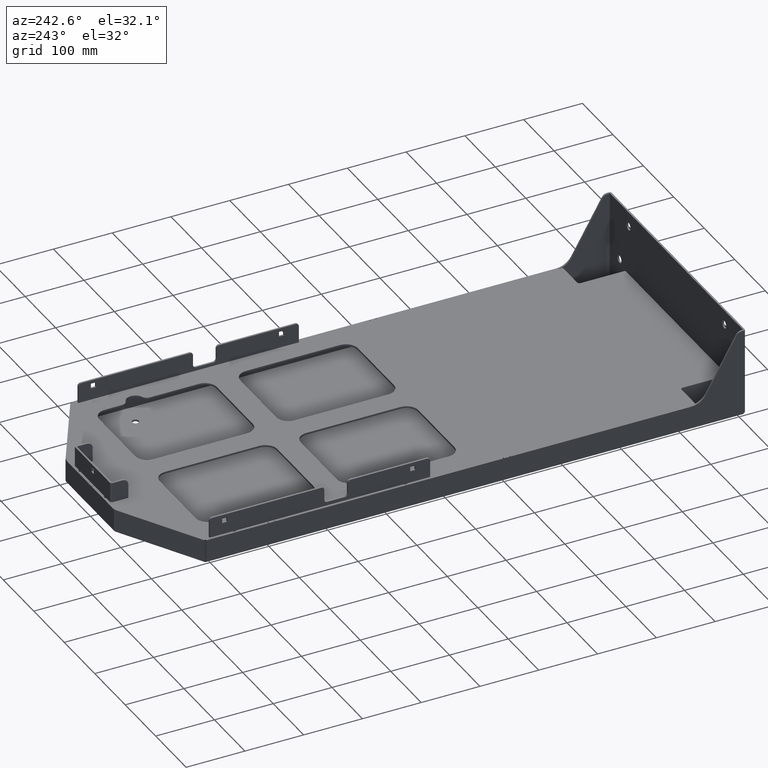
[diagram: clean part render]
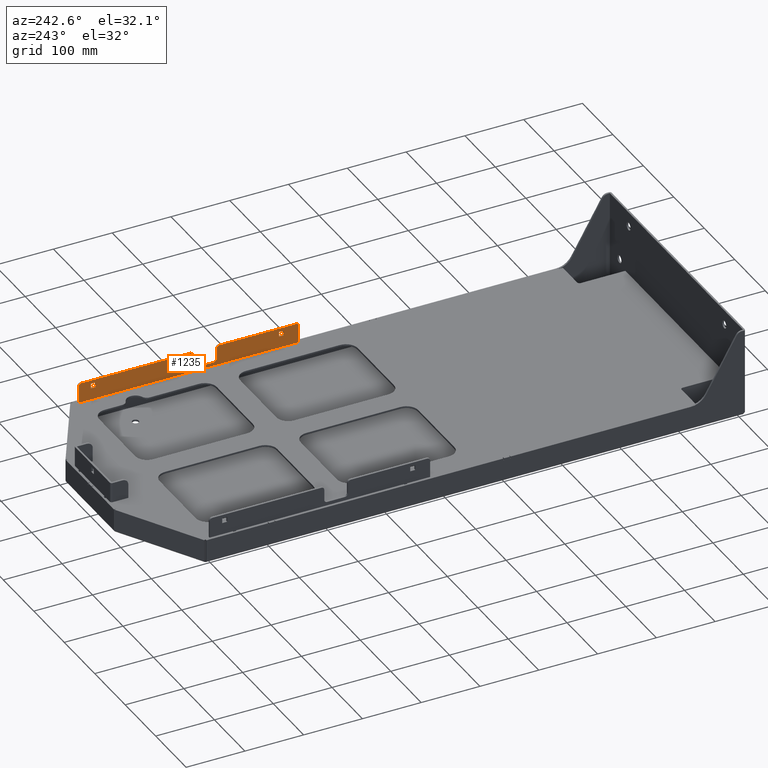
[diagram: same view with one face highlighted and labeled with its STEP entity id]
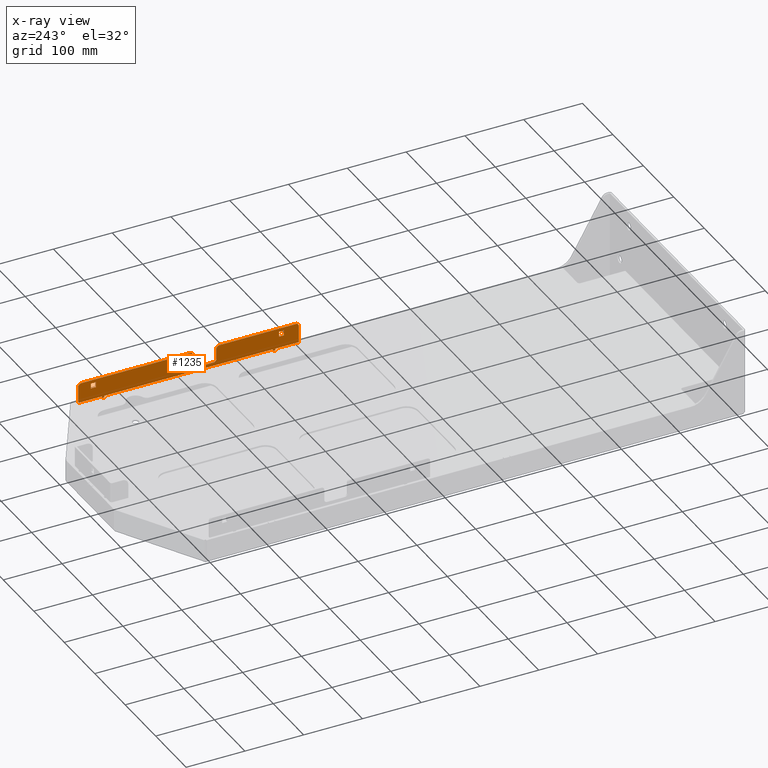
[diagram: x-ray of the same camera — body ghosted, the highlighted face saturated]
A machine part, auxiliary view. The second image highlights one B-rep face of the part: STEP entity #1235.
The next image is the same camera in x-ray: the body ghosted, the highlighted face saturated — about 0% of this face is hidden behind the body in this view.
In plain terms, the highlighted planar face has unit normal (-1, -0, -0).
Its self-contained STEP definition (entity closure, byte-faithful):
#287 = VERTEX_POINT ( 'NONE', #7946 ) ;
#305 = EDGE_CURVE ( 'NONE', #287, #360, #7885, .T. ) ;
#306 = VERTEX_POINT ( 'NONE', #7889 ) ;
#307 = VERTEX_POINT ( 'NONE', #7985 ) ;
#360 = VERTEX_POINT ( 'NONE', #8163 ) ;
#372 = EDGE_CURVE ( 'NONE', #373, #379, #8357, .T. ) ;
#373 = VERTEX_POINT ( 'NONE', #8281 ) ;
#378 = EDGE_CURVE ( 'NONE', #306, #307, #8235, .T. ) ;
#379 = VERTEX_POINT ( 'NONE', #8226 ) ;
#1051 = VERTEX_POINT ( 'NONE', #13053 ) ;
#1052 = ORIENTED_EDGE ( 'NONE', *, *, #1269, .T. ) ;
#1053 = EDGE_CURVE ( 'NONE', #1234, #1286, #13058, .T. ) ;
#1054 = VERTEX_POINT ( 'NONE', #13084 ) ;
#1055 = ORIENTED_EDGE ( 'NONE', *, *, #1053, .T. ) ;
#1056 = EDGE_CURVE ( 'NONE', #1286, #1051, #13083, .T. ) ;
#1057 = VERTEX_POINT ( 'NONE', #13082 ) ;
#1058 = EDGE_CURVE ( 'NONE', #1221, #1054, #13072, .T. ) ;
#1059 = EDGE_CURVE ( 'NONE', #1051, #1107, #13018, .T. ) ;
#1060 = VERTEX_POINT ( 'NONE', #13016 ) ;
#1062 = ORIENTED_EDGE ( 'NONE', *, *, #1059, .T. ) ;
#1063 = ORIENTED_EDGE ( 'NONE', *, *, #378, .F. ) ;
#1064 = ORIENTED_EDGE ( 'NONE', *, *, #1295, .T. ) ;
#1065 = VERTEX_POINT ( 'NONE', #13085 ) ;
#1066 = ORIENTED_EDGE ( 'NONE', *, *, #1124, .F. ) ;
#1067 = ORIENTED_EDGE ( 'NONE', *, *, #1058, .T. ) ;
#1105 = EDGE_CURVE ( 'NONE', #1108, #1060, #13170, .T. ) ;
#1106 = EDGE_CURVE ( 'NONE', #1110, #1208, #13345, .T. ) ;
#1107 = VERTEX_POINT ( 'NONE', #13263 ) ;
#1108 = VERTEX_POINT ( 'NONE', #13238 ) ;
#1109 = ORIENTED_EDGE ( 'NONE', *, *, #1156, .T. ) ;
#1110 = VERTEX_POINT ( 'NONE', #13166 ) ;
#1119 = EDGE_CURVE ( 'NONE', #379, #1160, #13164, .T. ) ;
#1120 = EDGE_CURVE ( 'NONE', #1217, #1065, #13327, .T. ) ;
#1121 = EDGE_CURVE ( 'NONE', #1060, #1290, #13322, .T. ) ;
#1122 = ORIENTED_EDGE ( 'NONE', *, *, #1233, .F. ) ;
#1123 = ORIENTED_EDGE ( 'NONE', *, *, #1267, .F. ) ;
#1124 = EDGE_CURVE ( 'NONE', #1265, #1216, #13318, .T. ) ;
#1125 = ORIENTED_EDGE ( 'NONE', *, *, #1223, .F. ) ;
#1148 = ORIENTED_EDGE ( 'NONE', *, *, #1056, .T. ) ;
#1154 = ORIENTED_EDGE ( 'NONE', *, *, #1105, .T. ) ;
#1156 = EDGE_CURVE ( 'NONE', #1290, #1159, #13208, .T. ) ;
#1157 = VERTEX_POINT ( 'NONE', #13207 ) ;
#1158 = VERTEX_POINT ( 'NONE', #13214 ) ;
#1159 = VERTEX_POINT ( 'NONE', #13203 ) ;
#1160 = VERTEX_POINT ( 'NONE', #13213 ) ;
#1161 = EDGE_CURVE ( 'NONE', #1065, #1265, #13202, .T. ) ;
#1169 = EDGE_LOOP ( 'NONE', ( #1209, #1288, #1287, #1281 ) ) ;
#1170 = EDGE_CURVE ( 'NONE', #1208, #1158, #13251, .T. ) ;
#1175 = VERTEX_POINT ( 'NONE', #13253 ) ;
#1208 = VERTEX_POINT ( 'NONE', #13590 ) ;
#1209 = ORIENTED_EDGE ( 'NONE', *, *, #1106, .T. ) ;
#1210 = ORIENTED_EDGE ( 'NONE', *, *, #1285, .T. ) ;
#1215 = ORIENTED_EDGE ( 'NONE', *, *, #1293, .F. ) ;
#1216 = VERTEX_POINT ( 'NONE', #13583 ) ;
#1217 = VERTEX_POINT ( 'NONE', #13586 ) ;
#1219 = EDGE_CURVE ( 'NONE', #1158, #1157, #13398, .T. ) ;
#1220 = VERTEX_POINT ( 'NONE', #13404 ) ;
#1221 = VERTEX_POINT ( 'NONE', #13400 ) ;
#1222 = ORIENTED_EDGE ( 'NONE', *, *, #1120, .F. ) ;
#1223 = EDGE_CURVE ( 'NONE', #1160, #1217, #13394, .T. ) ;
#1226 = EDGE_CURVE ( 'NONE', #1157, #1110, #13384, .T. ) ;
#1229 = EDGE_CURVE ( 'NONE', #306, #1057, #13399, .T. ) ;
#1230 = ORIENTED_EDGE ( 'NONE', *, *, #1297, .T. ) ;
#1231 = EDGE_CURVE ( 'NONE', #1294, #287, #13542, .T. ) ;
#1233 = EDGE_CURVE ( 'NONE', #1305, #373, #13525, .T. ) ;
#1234 = VERTEX_POINT ( 'NONE', #13524 ) ;
#1235 = ADVANCED_FACE ( 'NONE', ( #13518, #13385, #13520 ), #13534, .T. ) ;
#1236 = ORIENTED_EDGE ( 'NONE', *, *, #1251, .F. ) ;
#1237 = EDGE_CURVE ( 'NONE', #1305, #1220, #13516, .T. ) ;
#1250 = ORIENTED_EDGE ( 'NONE', *, *, #1237, .T. ) ;
#1251 = EDGE_CURVE ( 'NONE', #1175, #1220, #13670, .T. ) ;
#1265 = VERTEX_POINT ( 'NONE', #13854 ) ;
#1266 = ORIENTED_EDGE ( 'NONE', *, *, #1231, .F. ) ;
#1267 = EDGE_CURVE ( 'NONE', #1216, #1294, #13833, .T. ) ;
#1268 = ORIENTED_EDGE ( 'NONE', *, *, #1161, .F. ) ;
#1269 = EDGE_CURVE ( 'NONE', #1175, #1234, #13850, .T. ) ;
#1281 = ORIENTED_EDGE ( 'NONE', *, *, #1226, .T. ) ;
#1285 = EDGE_CURVE ( 'NONE', #1159, #1108, #14170, .T. ) ;
#1286 = VERTEX_POINT ( 'NONE', #14079 ) ;
#1287 = ORIENTED_EDGE ( 'NONE', *, *, #1219, .T. ) ;
#1288 = ORIENTED_EDGE ( 'NONE', *, *, #1170, .T. ) ;
#1289 = EDGE_LOOP ( 'NONE', ( #1300, #1109, #1210, #1154 ) ) ;
#1290 = VERTEX_POINT ( 'NONE', #14036 ) ;
#1291 = ORIENTED_EDGE ( 'NONE', *, *, #305, .F. ) ;
#1292 = ORIENTED_EDGE ( 'NONE', *, *, #1229, .T. ) ;
#1293 = EDGE_CURVE ( 'NONE', #360, #1057, #14111, .T. ) ;
#1294 = VERTEX_POINT ( 'NONE', #14171 ) ;
#1295 = EDGE_CURVE ( 'NONE', #1107, #1221, #14114, .T. ) ;
#1296 = ORIENTED_EDGE ( 'NONE', *, *, #1119, .F. ) ;
#1297 = EDGE_CURVE ( 'NONE', #1054, #307, #14076, .T. ) ;
#1298 = EDGE_LOOP ( 'NONE', ( #1122, #1250, #1236, #1052, #1055, #1148, #1062, #1064, #1067, #1230, #1063, #1292, #1215, #1291, #1266, #1123, #1066, #1268, #1222, #1125, #1296, #1301 ) ) ;
#1300 = ORIENTED_EDGE ( 'NONE', *, *, #1121, .T. ) ;
#1301 = ORIENTED_EDGE ( 'NONE', *, *, #372, .F. ) ;
#1305 = VERTEX_POINT ( 'NONE', #13890 ) ;
#7885 = LINE ( 'NONE', #7993, #7927 ) ;
#7889 = CARTESIAN_POINT ( 'NONE',  ( 213.9999999999999100, 904.5000000000000000, 74.00000000000000000 ) ) ;
#7927 = VECTOR ( 'NONE', #7986, 1000.000000000000000 ) ;
#7946 = CARTESIAN_POINT ( 'NONE',  ( 213.9999999999999400, 869.5000000000000000, 40.00000000000003600 ) ) ;
#7985 = CARTESIAN_POINT ( 'NONE',  ( 213.9999999999999700, 719.5000000000002300, 74.00000000000007100 ) ) ;
#7986 = DIRECTION ( 'NONE',  ( -2.255140518769851100E-017, 1.000000000000000000, -3.538835890992689400E-016 ) ) ;
#7993 = CARTESIAN_POINT ( 'NONE',  ( 213.9999999999999100, 534.5000000000004500, 40.00000000000017800 ) ) ;
#8163 = CARTESIAN_POINT ( 'NONE',  ( 214.0000000000000600, 909.4999999999997700, 40.00000000000016300 ) ) ;
#8226 = CARTESIAN_POINT ( 'NONE',  ( 214.0000000000000300, 574.5000000000003400, 40.00000000000024200 ) ) ;
#8230 = DIRECTION ( 'NONE',  ( 2.255140518769851100E-017, -1.000000000000000000, 3.538835890992689400E-016 ) ) ;
#8232 = VECTOR ( 'NONE', #8230, 1000.000000000000000 ) ;
#8233 = CARTESIAN_POINT ( 'NONE',  ( 214.0000000000000000, 534.5000000000004500, 74.00000000000011400 ) ) ;
#8235 = LINE ( 'NONE', #8233, #8232 ) ;
#8281 = CARTESIAN_POINT ( 'NONE',  ( 213.9999999999999100, 534.5000000000004500, 40.00000000000017800 ) ) ;
#8354 = DIRECTION ( 'NONE',  ( -2.255140518769851100E-017, 1.000000000000000000, -3.538835890992689400E-016 ) ) ;
#8355 = VECTOR ( 'NONE', #8354, 1000.000000000000000 ) ;
#8356 = CARTESIAN_POINT ( 'NONE',  ( 213.9999999999999100, 534.5000000000004500, 40.00000000000017800 ) ) ;
#8357 = LINE ( 'NONE', #8356, #8355 ) ;
#13014 = DIRECTION ( 'NONE',  ( -8.673617379884044700E-018, 1.000000000000000000, -4.276093368282834400E-016 ) ) ;
#13015 = VECTOR ( 'NONE', #13014, 1000.000000000000000 ) ;
#13016 = CARTESIAN_POINT ( 'NONE',  ( 213.9999999999998900, 888.2500000000002300, 59.74999999999997200 ) ) ;
#13017 = CARTESIAN_POINT ( 'NONE',  ( 213.9999999999999100, 674.5000000000005700, 46.00000000000018500 ) ) ;
#13018 = LINE ( 'NONE', #13017, #13015 ) ;
#13019 = DIRECTION ( 'NONE',  ( 0.0000000000000000000, -3.764349942869679800E-016, 1.000000000000000000 ) ) ;
#13020 = VECTOR ( 'NONE', #13019, 1000.000000000000000 ) ;
#13053 = CARTESIAN_POINT ( 'NONE',  ( 213.9999999999999400, 679.5000000000002300, 46.00000000000016300 ) ) ;
#13055 = AXIS2_PLACEMENT_3D ( 'NONE', #13078, #13077, #13076 ) ;
#13058 = LINE ( 'NONE', #13081, #13080 ) ;
#13071 = CARTESIAN_POINT ( 'NONE',  ( 213.9999999999999400, 714.5000000000001100, 74.00000000000002800 ) ) ;
#13072 = LINE ( 'NONE', #13071, #13020 ) ;
#13076 = DIRECTION ( 'NONE',  ( 0.0000000000000000000, 0.0000000000000000000, 1.000000000000000000 ) ) ;
#13077 = DIRECTION ( 'NONE',  ( 1.000000000000000000, 1.214306433183765000E-017, -0.0000000000000000000 ) ) ;
#13078 = CARTESIAN_POINT ( 'NONE',  ( 213.9999999999999700, 679.5000000000002300, 51.00000000000013500 ) ) ;
#13079 = DIRECTION ( 'NONE',  ( 0.0000000000000000000, 3.764349942869679800E-016, -1.000000000000000000 ) ) ;
#13080 = VECTOR ( 'NONE', #13079, 1000.000000000000000 ) ;
#13081 = CARTESIAN_POINT ( 'NONE',  ( 214.0000000000000900, 674.5000000000003400, 74.00000000000008500 ) ) ;
#13082 = CARTESIAN_POINT ( 'NONE',  ( 214.0000000000000300, 909.5000000000000000, 68.99999999999992900 ) ) ;
#13083 = CIRCLE ( 'NONE', #13055, 4.999999999999990200 ) ;
#13084 = CARTESIAN_POINT ( 'NONE',  ( 213.9999999999999700, 714.5000000000001100, 69.00000000000005700 ) ) ;
#13085 = CARTESIAN_POINT ( 'NONE',  ( 214.0000000000000000, 578.5000000000004500, 40.00000000000021300 ) ) ;
#13164 = LINE ( 'NONE', #13338, #13337 ) ;
#13166 = CARTESIAN_POINT ( 'NONE',  ( 213.9999999999999700, 568.2500000000003400, 59.75000000000013500 ) ) ;
#13167 = DIRECTION ( 'NONE',  ( -8.673617379884044700E-018, 1.000000000000000000, -4.276093368282834400E-016 ) ) ;
#13168 = VECTOR ( 'NONE', #13167, 1000.000000000000000 ) ;
#13169 = CARTESIAN_POINT ( 'NONE',  ( 213.9999999999999400, 879.7500000000001100, 59.74999999999990100 ) ) ;
#13170 = LINE ( 'NONE', #13169, #13168 ) ;
#13199 = DIRECTION ( 'NONE',  ( -2.255140518769851100E-017, 1.000000000000000000, -3.538835890992689400E-016 ) ) ;
#13200 = VECTOR ( 'NONE', #13199, 1000.000000000000000 ) ;
#13201 = CARTESIAN_POINT ( 'NONE',  ( 213.9999999999999100, 534.5000000000004500, 40.00000000000017800 ) ) ;
#13202 = LINE ( 'NONE', #13201, #13200 ) ;
#13203 = CARTESIAN_POINT ( 'NONE',  ( 213.9999999999998300, 879.7500000000000000, 68.24999999999992900 ) ) ;
#13204 = DIRECTION ( 'NONE',  ( 8.673617379884044700E-018, -1.000000000000000000, 4.276093368282834400E-016 ) ) ;
#13205 = VECTOR ( 'NONE', #13204, 1000.000000000000000 ) ;
#13206 = CARTESIAN_POINT ( 'NONE',  ( 213.9999999999998300, 879.7500000000000000, 68.24999999999992900 ) ) ;
#13207 = CARTESIAN_POINT ( 'NONE',  ( 213.9999999999999400, 559.7500000000002300, 59.75000000000014900 ) ) ;
#13208 = LINE ( 'NONE', #13206, #13205 ) ;
#13213 = CARTESIAN_POINT ( 'NONE',  ( 213.9999999999998600, 574.5000000000004500, 37.00000000000018500 ) ) ;
#13214 = CARTESIAN_POINT ( 'NONE',  ( 214.0000000000000000, 559.7500000000002300, 68.24999999999677400 ) ) ;
#13234 = DIRECTION ( 'NONE',  ( 0.0000000000000000000, -3.764349942869679800E-016, 1.000000000000000000 ) ) ;
#13235 = VECTOR ( 'NONE', #13234, 1000.000000000000000 ) ;
#13236 = CARTESIAN_POINT ( 'NONE',  ( 213.9999999999999100, 568.2500000000003400, 68.24999999999998600 ) ) ;
#13238 = CARTESIAN_POINT ( 'NONE',  ( 213.9999999999999400, 879.7500000000001100, 59.74999999999990100 ) ) ;
#13248 = DIRECTION ( 'NONE',  ( -5.030698080332743000E-017, -1.000000000000000000, -3.786207458666980700E-013 ) ) ;
#13249 = VECTOR ( 'NONE', #13248, 1000.000000000000000 ) ;
#13250 = CARTESIAN_POINT ( 'NONE',  ( 214.0000000000000000, 559.7500000000002300, 68.24999999999677400 ) ) ;
#13251 = LINE ( 'NONE', #13250, #13249 ) ;
#13253 = CARTESIAN_POINT ( 'NONE',  ( 213.9999999999999100, 669.5000000000002300, 74.00000000000009900 ) ) ;
#13263 = CARTESIAN_POINT ( 'NONE',  ( 214.0000000000000000, 709.5000000000002300, 46.00000000000017100 ) ) ;
#13314 = DIRECTION ( 'NONE',  ( -5.551115123125797500E-017, 9.652868782072968300E-015, -1.000000000000000000 ) ) ;
#13318 = LINE ( 'NONE', #13331, #13330 ) ;
#13319 = DIRECTION ( 'NONE',  ( 5.551115123125793800E-017, -3.817259008886971900E-015, 1.000000000000000000 ) ) ;
#13320 = VECTOR ( 'NONE', #13319, 1000.000000000000000 ) ;
#13321 = CARTESIAN_POINT ( 'NONE',  ( 213.9999999999999700, 888.2500000000002300, 68.24999999999998600 ) ) ;
#13322 = LINE ( 'NONE', #13321, #13320 ) ;
#13324 = DIRECTION ( 'NONE',  ( 0.0000000000000000000, -3.764349942869679800E-016, 1.000000000000000000 ) ) ;
#13325 = VECTOR ( 'NONE', #13324, 1000.000000000000000 ) ;
#13326 = CARTESIAN_POINT ( 'NONE',  ( 214.0000000000000000, 578.5000000000004500, 40.00000000000021300 ) ) ;
#13327 = LINE ( 'NONE', #13326, #13325 ) ;
#13330 = VECTOR ( 'NONE', #13314, 1000.000000000000000 ) ;
#13331 = CARTESIAN_POINT ( 'NONE',  ( 213.9999999999999700, 865.5000000000001100, 39.99999999999997900 ) ) ;
#13336 = DIRECTION ( 'NONE',  ( 0.0000000000000000000, 3.764349942869679800E-016, -1.000000000000000000 ) ) ;
#13337 = VECTOR ( 'NONE', #13336, 1000.000000000000000 ) ;
#13338 = CARTESIAN_POINT ( 'NONE',  ( 214.0000000000000300, 574.5000000000003400, 40.00000000000024200 ) ) ;
#13345 = LINE ( 'NONE', #13236, #13235 ) ;
#13375 = AXIS2_PLACEMENT_3D ( 'NONE', #13546, #13545, #13544 ) ;
#13380 = DIRECTION ( 'NONE',  ( -8.673617379884044700E-018, 1.000000000000000000, -4.276093368282834400E-016 ) ) ;
#13382 = VECTOR ( 'NONE', #13380, 1000.000000000000000 ) ;
#13383 = CARTESIAN_POINT ( 'NONE',  ( 213.9999999999999400, 559.7500000000002300, 59.75000000000014900 ) ) ;
#13384 = LINE ( 'NONE', #13383, #13382 ) ;
#13385 = FACE_BOUND ( 'NONE', #1289, .T. ) ;
#13391 = DIRECTION ( 'NONE',  ( -8.673617379884044700E-018, 1.000000000000000000, -4.276093368282834400E-016 ) ) ;
#13392 = VECTOR ( 'NONE', #13391, 1000.000000000000000 ) ;
#13393 = CARTESIAN_POINT ( 'NONE',  ( 213.9999999999998600, 574.5000000000004500, 37.00000000000018500 ) ) ;
#13394 = LINE ( 'NONE', #13393, #13392 ) ;
#13395 = DIRECTION ( 'NONE',  ( -1.665334536937738500E-016, -2.842344415388004700E-015, -1.000000000000000000 ) ) ;
#13396 = VECTOR ( 'NONE', #13395, 1000.000000000000000 ) ;
#13397 = CARTESIAN_POINT ( 'NONE',  ( 214.0000000000000000, 559.7500000000002300, 68.24999999999677400 ) ) ;
#13398 = LINE ( 'NONE', #13397, #13396 ) ;
#13399 = CIRCLE ( 'NONE', #13375, 4.999999999999990200 ) ;
#13400 = CARTESIAN_POINT ( 'NONE',  ( 213.9999999999998900, 714.5000000000002300, 51.00000000000014200 ) ) ;
#13404 = CARTESIAN_POINT ( 'NONE',  ( 213.9999999999999700, 539.5000000000003400, 74.00000000000014200 ) ) ;
#13412 = DIRECTION ( 'NONE',  ( 0.0000000000000000000, 0.0000000000000000000, 1.000000000000000000 ) ) ;
#13413 = DIRECTION ( 'NONE',  ( -1.000000000000000000, -1.214306433183765000E-017, 0.0000000000000000000 ) ) ;
#13420 = DIRECTION ( 'NONE',  ( 0.0000000000000000000, -3.764349942869679800E-016, 1.000000000000000000 ) ) ;
#13421 = DIRECTION ( 'NONE',  ( -1.000000000000000000, -1.214306433183764800E-017, -4.571074352381589700E-033 ) ) ;
#13422 = CARTESIAN_POINT ( 'NONE',  ( 213.9999999999999100, 909.5000000000000000, 73.99999999999985800 ) ) ;
#13426 = AXIS2_PLACEMENT_3D ( 'NONE', #13530, #13413, #13412 ) ;
#13516 = CIRCLE ( 'NONE', #13426, 4.999999999999990200 ) ;
#13518 = FACE_OUTER_BOUND ( 'NONE', #1298, .T. ) ;
#13519 = AXIS2_PLACEMENT_3D ( 'NONE', #13422, #13421, #13420 ) ;
#13520 = FACE_BOUND ( 'NONE', #1169, .T. ) ;
#13521 = DIRECTION ( 'NONE',  ( 0.0000000000000000000, 3.764349942869679800E-016, -1.000000000000000000 ) ) ;
#13522 = VECTOR ( 'NONE', #13521, 1000.000000000000000 ) ;
#13523 = CARTESIAN_POINT ( 'NONE',  ( 214.0000000000000000, 534.5000000000004500, 74.00000000000011400 ) ) ;
#13524 = CARTESIAN_POINT ( 'NONE',  ( 213.9999999999999100, 674.5000000000002300, 69.00000000000004300 ) ) ;
#13525 = LINE ( 'NONE', #13523, #13522 ) ;
#13530 = CARTESIAN_POINT ( 'NONE',  ( 213.9999999999999700, 539.5000000000003400, 69.00000000000012800 ) ) ;
#13534 = PLANE ( 'NONE',  #13519 ) ;
#13536 = DIRECTION ( 'NONE',  ( 0.0000000000000000000, -3.764349942869679800E-016, 1.000000000000000000 ) ) ;
#13538 = VECTOR ( 'NONE', #13536, 1000.000000000000000 ) ;
#13540 = CARTESIAN_POINT ( 'NONE',  ( 213.9999999999999400, 869.5000000000000000, 40.00000000000003600 ) ) ;
#13542 = LINE ( 'NONE', #13540, #13538 ) ;
#13544 = DIRECTION ( 'NONE',  ( 0.0000000000000000000, 0.0000000000000000000, 1.000000000000000000 ) ) ;
#13545 = DIRECTION ( 'NONE',  ( -1.000000000000000000, -1.214306433183765000E-017, 0.0000000000000000000 ) ) ;
#13546 = CARTESIAN_POINT ( 'NONE',  ( 213.9999999999999100, 904.4999999999998900, 69.00000000000014200 ) ) ;
#13583 = CARTESIAN_POINT ( 'NONE',  ( 213.9999999999998900, 865.5000000000001100, 36.99999999999995000 ) ) ;
#13586 = CARTESIAN_POINT ( 'NONE',  ( 213.9999999999999700, 578.5000000000004500, 37.00000000000020600 ) ) ;
#13590 = CARTESIAN_POINT ( 'NONE',  ( 213.9999999999999100, 568.2500000000003400, 68.24999999999998600 ) ) ;
#13670 = LINE ( 'NONE', #13800, #13799 ) ;
#13797 = DIRECTION ( 'NONE',  ( 2.255140518769851100E-017, -1.000000000000000000, 3.538835890992689400E-016 ) ) ;
#13799 = VECTOR ( 'NONE', #13797, 1000.000000000000000 ) ;
#13800 = CARTESIAN_POINT ( 'NONE',  ( 214.0000000000000000, 534.5000000000004500, 74.00000000000011400 ) ) ;
#13818 = DIRECTION ( 'NONE',  ( 0.0000000000000000000, 0.0000000000000000000, 1.000000000000000000 ) ) ;
#13820 = DIRECTION ( 'NONE',  ( -1.000000000000000000, -1.214306433183765000E-017, 0.0000000000000000000 ) ) ;
#13821 = CARTESIAN_POINT ( 'NONE',  ( 213.9999999999999400, 669.5000000000003400, 69.00000000000000000 ) ) ;
#13829 = DIRECTION ( 'NONE',  ( -8.673617379884044700E-018, 1.000000000000000000, -4.276093368282834400E-016 ) ) ;
#13831 = VECTOR ( 'NONE', #13829, 1000.000000000000000 ) ;
#13832 = CARTESIAN_POINT ( 'NONE',  ( 213.9999999999998900, 865.5000000000001100, 36.99999999999995000 ) ) ;
#13833 = LINE ( 'NONE', #13832, #13831 ) ;
#13837 = AXIS2_PLACEMENT_3D ( 'NONE', #13821, #13820, #13818 ) ;
#13850 = CIRCLE ( 'NONE', #13837, 4.999999999999990200 ) ;
#13854 = CARTESIAN_POINT ( 'NONE',  ( 213.9999999999999700, 865.5000000000001100, 39.99999999999997900 ) ) ;
#13890 = CARTESIAN_POINT ( 'NONE',  ( 214.0000000000000600, 534.5000000000004500, 69.00000000000012800 ) ) ;
#13891 = DIRECTION ( 'NONE',  ( 0.0000000000000000000, 0.0000000000000000000, 1.000000000000000000 ) ) ;
#13892 = DIRECTION ( 'NONE',  ( -1.000000000000000000, -1.214306433183765000E-017, 0.0000000000000000000 ) ) ;
#14036 = CARTESIAN_POINT ( 'NONE',  ( 213.9999999999999700, 888.2500000000002300, 68.24999999999998600 ) ) ;
#14072 = DIRECTION ( 'NONE',  ( -1.665334536937738500E-016, -2.842344415388004700E-015, -1.000000000000000000 ) ) ;
#14073 = VECTOR ( 'NONE', #14072, 1000.000000000000000 ) ;
#14076 = CIRCLE ( 'NONE', #14100, 4.999999999999990200 ) ;
#14079 = CARTESIAN_POINT ( 'NONE',  ( 213.9999999999998900, 674.5000000000001100, 51.00000000000012800 ) ) ;
#14086 = AXIS2_PLACEMENT_3D ( 'NONE', #14096, #14094, #14092 ) ;
#14092 = DIRECTION ( 'NONE',  ( 0.0000000000000000000, 0.0000000000000000000, 1.000000000000000000 ) ) ;
#14094 = DIRECTION ( 'NONE',  ( 1.000000000000000000, 1.214306433183765000E-017, -0.0000000000000000000 ) ) ;
#14096 = CARTESIAN_POINT ( 'NONE',  ( 213.9999999999999700, 709.5000000000003400, 51.00000000000015600 ) ) ;
#14100 = AXIS2_PLACEMENT_3D ( 'NONE', #14102, #13892, #13891 ) ;
#14102 = CARTESIAN_POINT ( 'NONE',  ( 213.9999999999999700, 719.5000000000002300, 68.99999999999995700 ) ) ;
#14106 = DIRECTION ( 'NONE',  ( 0.0000000000000000000, -3.764349942869679800E-016, 1.000000000000000000 ) ) ;
#14107 = VECTOR ( 'NONE', #14106, 1000.000000000000000 ) ;
#14109 = CARTESIAN_POINT ( 'NONE',  ( 213.9999999999999100, 909.5000000000000000, 73.99999999999985800 ) ) ;
#14111 = LINE ( 'NONE', #14109, #14107 ) ;
#14114 = CIRCLE ( 'NONE', #14086, 4.999999999999990200 ) ;
#14169 = CARTESIAN_POINT ( 'NONE',  ( 213.9999999999998300, 879.7500000000000000, 68.24999999999992900 ) ) ;
#14170 = LINE ( 'NONE', #14169, #14073 ) ;
#14171 = CARTESIAN_POINT ( 'NONE',  ( 213.9999999999999700, 869.5000000000001100, 36.99999999999996400 ) ) ;